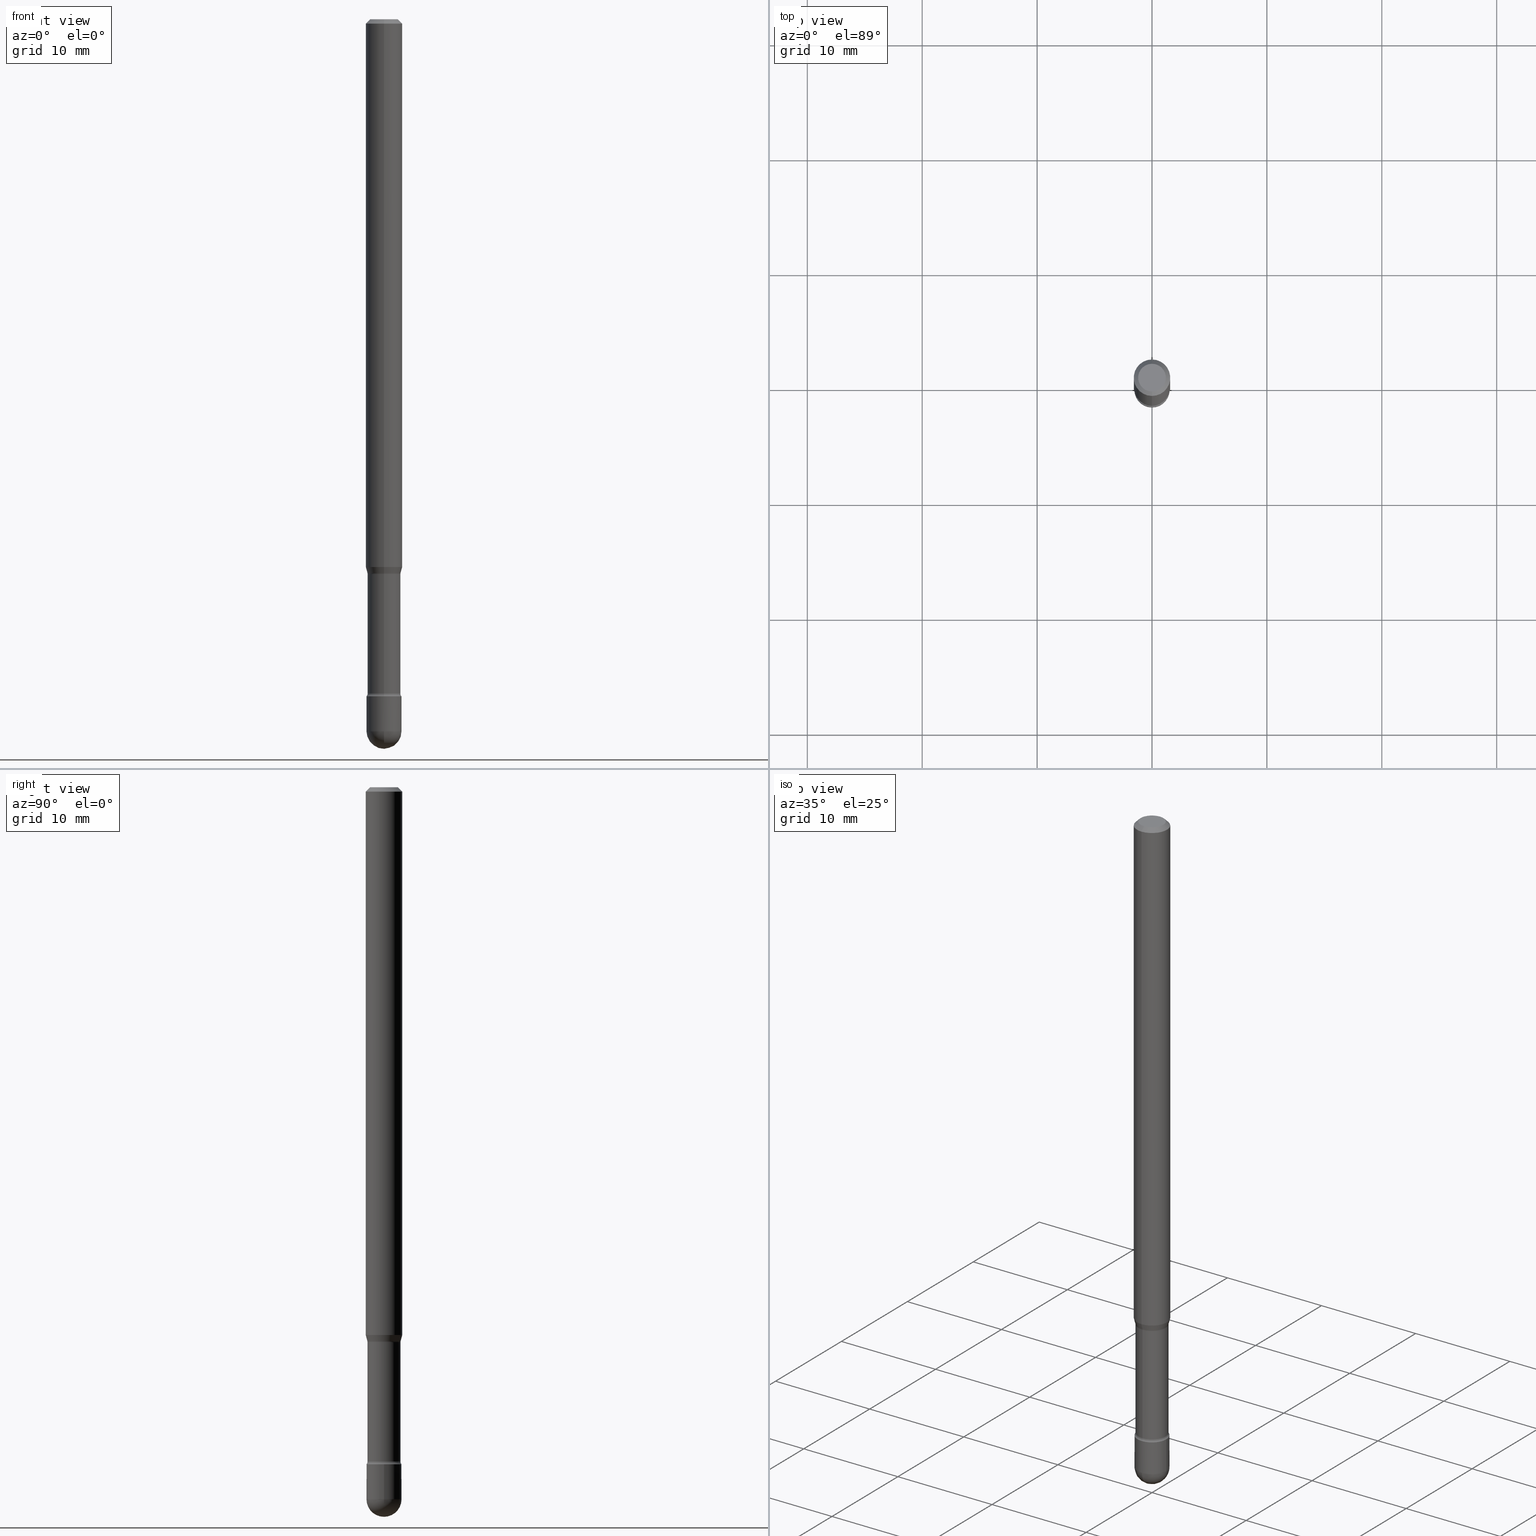
[diagram: canonical four-view strip — front | top / right | iso, engineering-drawing reading convention]
A machine part, canonical four-view strip (front | top / right | iso — engineering-drawing reading convention). The complete STEP part file that produces these views, byte-faithful:
ISO-10303-21;
HEADER;
FILE_DESCRIPTION (( 'STEP AP203' ),
    '1' );
FILE_NAME ('03858.STEP',
    '2024-04-09T20:47:46',
    ( '' ),
    ( '' ),
    'SwSTEP 2.0',
    'SolidWorks 2023',
    '' );
FILE_SCHEMA (( 'CONFIG_CONTROL_DESIGN' ));
ENDSEC;

DATA;
#1 = DIRECTION ( 'NONE',  ( -6.982962677686265922E-15, -1.000000000000000000, 3.491413096180566142E-15 ) ) ;
#2 = DIRECTION ( 'NONE',  ( -6.982962677686265922E-15, -1.000000000000000000, 4.370956789862821150E-15 ) ) ;
#3 = ORIENTED_EDGE ( 'NONE', *, *, #417, .F. ) ;
#4 = APPLICATION_CONTEXT ( 'configuration controlled 3d designs of mechanical parts and assemblies' ) ;
#5 = DIRECTION ( 'NONE',  ( -2.445516459781718316E-29, 3.491413096180566537E-15, 1.000000000000000000 ) ) ;
#6 = CARTESIAN_POINT ( 'NONE',  ( -4.985835351867527244E-16, -0.07140000000000662483, -1.901974787463810879 ) ) ;
#7 = CIRCLE ( 'NONE', #165, 0.05999999999999999084 ) ;
#8 = CIRCLE ( 'NONE', #244, 0.05999999999999994921 ) ;
#9 = DIRECTION ( 'NONE',  ( 1.000000000000000000, 0.000000000000000000, 0.000000000000000000 ) ) ;
#10 = DIRECTION ( 'NONE',  ( -1.000000000000000000, 7.105427357601001070E-15, -4.926315508542082329E-29 ) ) ;
#11 = EDGE_CURVE ( 'NONE', #142, #329, #369, .T. ) ;
#12 = ORIENTED_EDGE ( 'NONE', *, *, #36, .F. ) ;
#13 = ORIENTED_EDGE ( 'NONE', *, *, #236, .F. ) ;
#14 = DATE_AND_TIME ( #97, #168 ) ;
#15 = ADVANCED_FACE ( 'NONE', ( #547 ), #325, .T. ) ;
#16 = ORIENTED_EDGE ( 'NONE', *, *, #477, .T. ) ;
#17 = EDGE_LOOP ( 'NONE', ( #324, #542, #247, #292, #144 ) ) ;
#18 = CARTESIAN_POINT ( 'NONE',  ( 4.641816455309037282E-29, -6.627025018502220601E-15, -1.898092501787273401 ) ) ;
#19 = ORIENTED_EDGE ( 'NONE', *, *, #327, .F. ) ;
#20 = DIRECTION ( 'NONE',  ( -2.445516459781718597E-29, 3.491413096180566537E-15, 1.000000000000000000 ) ) ;
#21 = CIRCLE ( 'NONE', #428, 0.06250000000000000000 ) ;
#22 = AXIS2_PLACEMENT_3D ( 'NONE', #523, #260, #516 ) ;
#23 = VERTEX_POINT ( 'NONE', #457 ) ;
#24 = CC_DESIGN_SECURITY_CLASSIFICATION ( #204, ( #213 ) ) ;
#25 = EDGE_CURVE ( 'NONE', #242, #316, #497, .T. ) ;
#26 = CARTESIAN_POINT ( 'NONE',  ( -1.169113584055446105E-44, 1.669184350826100908E-30, 4.780733988912460139E-16 ) ) ;
#27 = DIRECTION ( 'NONE',  ( 7.105427357600998703E-15, 1.000000000000000000, 0.000000000000000000 ) ) ;
#28 = ADVANCED_FACE ( 'NONE', ( #334 ), #509, .T. ) ;
#29 = CARTESIAN_POINT ( 'NONE',  ( -4.364351673553916201E-16, -0.06250000000000000000, 6.962867174025315211E-16 ) ) ;
#30 = DIRECTION ( 'NONE',  ( -2.445516459781718316E-29, 3.491413096180566537E-15, 1.000000000000000000 ) ) ;
#31 = VECTOR ( 'NONE', #471, 39.37007874015748143 ) ;
#32 = LOCAL_TIME ( 16, 47, 46.00000000000000000, #279 ) ;
#33 = CARTESIAN_POINT ( 'NONE',  ( 5.673487630349517039E-29, -8.100236706116098414E-15, -2.320000000000000284 ) ) ;
#34 = CARTESIAN_POINT ( 'NONE',  ( 4.263256414561168444E-16, 0.05999999999999190703, -2.320000000000000284 ) ) ;
#35 = DIRECTION ( 'NONE',  ( -6.982962677686265922E-15, -1.000000000000000000, 3.491413096180566142E-15 ) ) ;
#36 = EDGE_CURVE ( 'NONE', #469, #494, #7, .T. ) ;
#37 = FACE_OUTER_BOUND ( 'NONE', #177, .T. ) ;
#38 = CC_DESIGN_PERSON_AND_ORGANIZATION_ASSIGNMENT ( #162, #302, ( #204 ) ) ;
#39 = CARTESIAN_POINT ( 'NONE',  ( 2.023899380522805795E-45, -2.888827639509961427E-31, -8.275027359801793586E-17 ) ) ;
#40 = CARTESIAN_POINT ( 'NONE',  ( 5.649647131350973229E-29, -8.066198791933100712E-15, -2.310251153914436806 ) ) ;
#41 = AXIS2_PLACEMENT_3D ( 'NONE', #6, #132, #84 ) ;
#42 = FACE_OUTER_BOUND ( 'NONE', #254, .T. ) ;
#43 = CARTESIAN_POINT ( 'NONE',  ( 3.840629472727447874E-16, 0.04749999999999999362, -2.485923956665948360E-16 ) ) ;
#44 = CARTESIAN_POINT ( 'NONE',  ( 4.440892098501086659E-16, 0.06249999999999993755, -0.01500000000000030129 ) ) ;
#45 = APPLICATION_PROTOCOL_DEFINITION ( 'international standard', 'config_control_design', 1994, #224 ) ;
#46 = EDGE_CURVE ( 'NONE', #418, #407, #376, .T. ) ;
#47 = DIRECTION ( 'NONE',  ( -2.445516459781718316E-29, 3.491413096180566537E-15, 1.000000000000000000 ) ) ;
#48 = CONICAL_SURFACE ( 'NONE', #379, 0.05691111260566400487, 0.2617993877991499074 ) ;
#49 = CIRCLE ( 'NONE', #374, 0.05999999999999999778 ) ;
#50 = DATE_AND_TIME ( #135, #32 ) ;
#51 = LOCAL_TIME ( 16, 47, 46.00000000000000000, #442 ) ;
#52 = EDGE_CURVE ( 'NONE', #56, #316, #551, .T. ) ;
#53 = ORIENTED_EDGE ( 'NONE', *, *, #238, .F. ) ;
#54 = ORIENTED_EDGE ( 'NONE', *, *, #236, .T. ) ;
#55 = CARTESIAN_POINT ( 'NONE',  ( 4.135358722124349706E-16, 0.05639999999999196351, -2.310251153914437250 ) ) ;
#56 = VERTEX_POINT ( 'NONE', #282 ) ;
#57 = DIRECTION ( 'NONE',  ( -6.982962677686267499E-15, -1.000000000000000000, 0.000000000000000000 ) ) ;
#58 = ADVANCED_FACE ( 'NONE', ( #64 ), #48, .T. ) ;
#59 = AXIS2_PLACEMENT_3D ( 'NONE', #40, #207, #1 ) ;
#60 = ORIENTED_EDGE ( 'NONE', *, *, #433, .F. ) ;
#61 = EDGE_CURVE ( 'NONE', #418, #23, #112, .T. ) ;
#62 = ORIENTED_EDGE ( 'NONE', *, *, #156, .T. ) ;
#63 = ORIENTED_EDGE ( 'NONE', *, *, #496, .F. ) ;
#64 = FACE_OUTER_BOUND ( 'NONE', #239, .T. ) ;
#65 = APPROVAL_PERSON_ORGANIZATION ( #317, #459, #451 ) ;
#66 = DIRECTION ( 'NONE',  ( -6.982962677686265922E-15, -1.000000000000000000, 4.800201346603755735E-15 ) ) ;
#67 = EDGE_LOOP ( 'NONE', ( #278, #498 ) ) ;
#68 = DIRECTION ( 'NONE',  ( -2.445516459781718597E-29, 3.491413096180566537E-15, 1.000000000000000000 ) ) ;
#69 = APPROVAL ( #486, 'UNSPECIFIED' ) ;
#70 = APPROVAL_DATE_TIME ( #552, #69 ) ;
#71 = DIRECTION ( 'NONE',  ( 1.000000000000000000, -6.982962677686266711E-15, 4.876176775795935793E-29 ) ) ;
#72 = EDGE_CURVE ( 'NONE', #23, #129, #201, .T. ) ;
#73 = DIRECTION ( 'NONE',  ( -2.445468806185136597E-29, 3.491481338843145583E-15, 1.000000000000000000 ) ) ;
#74 = ORIENTED_EDGE ( 'NONE', *, *, #386, .T. ) ;
#75 = FACE_OUTER_BOUND ( 'NONE', #370, .T. ) ;
#76 = TOROIDAL_SURFACE ( 'NONE', #301, 0.07140000000000003288, 0.01500000000000001332 ) ;
#77 = EDGE_CURVE ( 'NONE', #105, #329, #21, .T. ) ;
#78 = DIRECTION ( 'NONE',  ( -6.982962677686265922E-15, -1.000000000000000000, 4.843702116425996063E-15 ) ) ;
#79 = DIRECTION ( 'NONE',  ( -2.445516459781718597E-29, 3.491413096180566537E-15, 1.000000000000000000 ) ) ;
#80 = DATE_TIME_ROLE ( 'classification_date' ) ;
#81 = DIRECTION ( 'NONE',  ( 1.000000000000000000, -6.982962677686269077E-15, 0.000000000000000000 ) ) ;
#82 = DIRECTION ( 'NONE',  ( -2.445468806185136597E-29, 3.491481338843145583E-15, 1.000000000000000000 ) ) ;
#83 = APPROVAL_ROLE ( '' ) ;
#84 = DIRECTION ( 'NONE',  ( -6.982962677686262766E-15, -1.000000000000000000, 0.000000000000000000 ) ) ;
#85 = AXIS2_PLACEMENT_3D ( 'NONE', #125, #123, #71 ) ;
#86 = AXIS2_PLACEMENT_3D ( 'NONE', #39, #124, #485 ) ;
#87 = DATE_AND_TIME ( #365, #267 ) ;
#88 = CARTESIAN_POINT ( 'NONE',  ( -1.169113584055446105E-44, 1.669184350826100908E-30, 4.780733988912460139E-16 ) ) ;
#89 = CC_DESIGN_PERSON_AND_ORGANIZATION_ASSIGNMENT ( #143, #256, ( #213 ) ) ;
#90 = CARTESIAN_POINT ( 'NONE',  ( 4.364351673553919652E-16, 0.06249999999999995143, -0.01500000000000030129 ) ) ;
#91 = DIRECTION ( 'NONE',  ( 6.982962677686265922E-15, 1.000000000000000000, -4.553079989440442247E-15 ) ) ;
#92 = ORIENTED_EDGE ( 'NONE', *, *, #61, .T. ) ;
#93 = ADVANCED_FACE ( 'NONE', ( #287 ), #422, .T. ) ;
#94 = ORIENTED_EDGE ( 'NONE', *, *, #477, .F. ) ;
#95 = ORIENTED_EDGE ( 'NONE', *, *, #152, .F. ) ;
#96 = AXIS2_PLACEMENT_3D ( 'NONE', #558, #384, #78 ) ;
#97 = CALENDAR_DATE ( 2024, 9, 4 ) ;
#98 = LOCAL_TIME ( 16, 47, 46.00000000000000000, #479 ) ;
#99 = CC_DESIGN_PERSON_AND_ORGANIZATION_ASSIGNMENT ( #323, #446, ( #503 ) ) ;
#100 = ORIENTED_EDGE ( 'NONE', *, *, #61, .F. ) ;
#101 =( LENGTH_UNIT ( ) NAMED_UNIT ( * ) SI_UNIT ( $, .METRE. ) );
#102 = ADVANCED_FACE ( 'NONE', ( #75 ), #465, .F. ) ;
#103 = ORIENTED_EDGE ( 'NONE', *, *, #536, .T. ) ;
#104 = MANIFOLD_SOLID_BREP ( 'Body-Move/Copy2[2]', #243 ) ;
#105 = VERTEX_POINT ( 'NONE', #473 ) ;
#106 = ADVANCED_FACE ( 'NONE', ( #163 ), #383, .T. ) ;
#107 = CIRCLE ( 'NONE', #41, 0.01499999999999999424 ) ;
#108 = DIRECTION ( 'NONE',  ( -2.445468806185136597E-29, 3.491481338843145583E-15, 1.000000000000000000 ) ) ;
#109 = ADVANCED_FACE ( 'NONE', ( #378 ), #147, .T. ) ;
#110 = CARTESIAN_POINT ( 'NONE',  ( -1.169113584055446105E-44, 1.669184350826100908E-30, 4.780733988912460139E-16 ) ) ;
#111 = CARTESIAN_POINT ( 'NONE',  ( 5.673598186693586539E-29, -8.100078383138915375E-15, -2.320000000000000284 ) ) ;
#112 = CIRCLE ( 'NONE', #176, 0.01500000000000001853 ) ;
#113 = CARTESIAN_POINT ( 'NONE',  ( -3.938390950215054539E-16, -0.05640000000000001262, 6.749890975158300854E-16 ) ) ;
#114 = ORIENTED_EDGE ( 'NONE', *, *, #386, .F. ) ;
#115 = DIRECTION ( 'NONE',  ( -2.445468806185136597E-29, 3.491481338843145583E-15, 1.000000000000000000 ) ) ;
#116 = CARTESIAN_POINT ( 'NONE',  ( -3.938390950214588618E-16, -0.05640000000000664621, -1.901974787463810879 ) ) ;
#117 = CARTESIAN_POINT ( 'NONE',  ( -3.773273898774340269E-16, -0.04749999999999999362, 8.309184847055897661E-17 ) ) ;
#118 = FACE_OUTER_BOUND ( 'NONE', #222, .T. ) ;
#119 = CARTESIAN_POINT ( 'NONE',  ( 5.966943887091733341E-29, -8.519214466777275048E-15, -2.440000000000000391 ) ) ;
#120 = VECTOR ( 'NONE', #68, 39.37007874015748143 ) ;
#121 = ADVANCED_FACE ( 'NONE', ( #37 ), #553, .T. ) ;
#122 = CARTESIAN_POINT ( 'NONE',  ( 3.668274689672597391E-31, -5.237119644270878574E-17, -0.01500000000000008271 ) ) ;
#123 = DIRECTION ( 'NONE',  ( -2.445468806185136597E-29, 3.491481338843145583E-15, 1.000000000000000000 ) ) ;
#124 = DIRECTION ( 'NONE',  ( -2.445516459781718316E-29, 3.491413096180566537E-15, 1.000000000000000000 ) ) ;
#125 = CARTESIAN_POINT ( 'NONE',  ( 0.000000000000000000, 0.000000000000000000, 0.000000000000000000 ) ) ;
#126 = DIRECTION ( 'NONE',  ( -2.445516459781718316E-29, 3.491413096180566537E-15, 1.000000000000000000 ) ) ;
#127 = DIRECTION ( 'NONE',  ( -2.445516459781718316E-29, 3.491413096180566537E-15, 1.000000000000000000 ) ) ;
#128 = PRODUCT_RELATED_PRODUCT_CATEGORY ( 'detail', '', ( #503 ) ) ;
#129 = VERTEX_POINT ( 'NONE', #34 ) ;
#130 = AXIS2_PLACEMENT_3D ( 'NONE', #159, #432, #208 ) ;
#131 =( NAMED_UNIT ( * ) PLANE_ANGLE_UNIT ( ) SI_UNIT ( $, .RADIAN. ) );
#132 = DIRECTION ( 'NONE',  ( -1.000000000000000000, 6.982962677686265922E-15, -4.883557194083112901E-29 ) ) ;
#133 = EDGE_LOOP ( 'NONE', ( #326, #294 ) ) ;
#134 = EDGE_CURVE ( 'NONE', #416, #407, #439, .T. ) ;
#135 = CALENDAR_DATE ( 2024, 9, 4 ) ;
#136 = FACE_OUTER_BOUND ( 'NONE', #355, .T. ) ;
#137 = EDGE_LOOP ( 'NONE', ( #289, #531, #340, #359 ) ) ;
#138 = APPLICATION_PROTOCOL_DEFINITION ( 'international standard', 'config_control_design', 1994, #4 ) ;
#139 = PRODUCT_DEFINITION ( 'UNKNOWN', '', #213, #467 ) ;
#140 = AXIS2_PLACEMENT_3D ( 'NONE', #342, #158, #81 ) ;
#141 = DIRECTION ( 'NONE',  ( 2.445516459781717756E-29, -3.491413096180566537E-15, -1.000000000000000000 ) ) ;
#142 = VERTEX_POINT ( 'NONE', #521 ) ;
#143 = PERSON_AND_ORGANIZATION ( #351, #549 ) ;
#144 = ORIENTED_EDGE ( 'NONE', *, *, #152, .T. ) ;
#145 = DIRECTION ( 'NONE',  ( -2.445516459781718316E-29, 3.491413096180566537E-15, 1.000000000000000000 ) ) ;
#146 = EDGE_CURVE ( 'NONE', #230, #320, #401, .T. ) ;
#147 = CONICAL_SURFACE ( 'NONE', #499, 0.06250000000000000000, 0.7853981633974483900 ) ;
#148 = AXIS2_PLACEMENT_3D ( 'NONE', #172, #141, #277 ) ;
#149 = DIRECTION ( 'NONE',  ( -6.982962677686265922E-15, -1.000000000000000000, 3.491413096180567326E-15 ) ) ;
#150 = PERSON_AND_ORGANIZATION ( #351, #549 ) ;
#151 = EDGE_CURVE ( 'NONE', #56, #469, #335, .T. ) ;
#152 = EDGE_CURVE ( 'NONE', #494, #320, #328, .T. ) ;
#153 = CARTESIAN_POINT ( 'NONE',  ( -0.05999999999999999084, 4.263256414560600464E-16, -2.951361054152942712E-30 ) ) ;
#154 = EDGE_CURVE ( 'NONE', #535, #416, #337, .T. ) ;
#155 = CARTESIAN_POINT ( 'NONE',  ( 4.440892098500625669E-16, 0.06250000000000000000, 2.598600803799606547E-16 ) ) ;
#156 = EDGE_CURVE ( 'NONE', #494, #242, #480, .T. ) ;
#157 = AXIS2_PLACEMENT_3D ( 'NONE', #534, #47, #530 ) ;
#158 = DIRECTION ( 'NONE',  ( -2.445468806185136597E-29, 3.491481338843145583E-15, 1.000000000000000000 ) ) ;
#159 = CARTESIAN_POINT ( 'NONE',  ( 3.668274689672597391E-31, -5.237119644270878574E-17, -0.01500000000000008271 ) ) ;
#160 = DIRECTION ( 'NONE',  ( -2.445516459781718316E-29, 3.491413096180566537E-15, 1.000000000000000000 ) ) ;
#161 = DIRECTION ( 'NONE',  ( 1.000000000000000000, -6.982962677686265922E-15, 4.876176775795935793E-29 ) ) ;
#162 = PERSON_AND_ORGANIZATION ( #351, #549 ) ;
#163 = FACE_OUTER_BOUND ( 'NONE', #17, .T. ) ;
#164 = CARTESIAN_POINT ( 'NONE',  ( -4.364351673553456197E-16, -0.06250000000000653644, -1.877234490073830031 ) ) ;
#165 = AXIS2_PLACEMENT_3D ( 'NONE', #290, #235, #462 ) ;
#166 = FACE_OUTER_BOUND ( 'NONE', #133, .T. ) ;
#167 = AXIS2_PLACEMENT_3D ( 'NONE', #26, #200, #171 ) ;
#168 = LOCAL_TIME ( 16, 47, 46.00000000000000000, #410 ) ;
#169 = DIRECTION ( 'NONE',  ( -2.445516459781718316E-29, 3.491413096180566537E-15, 1.000000000000000000 ) ) ;
#170 = PERSON_AND_ORGANIZATION ( #351, #549 ) ;
#171 = DIRECTION ( 'NONE',  ( -6.982962677686265133E-15, -1.000000000000000000, 3.491413096180567326E-15 ) ) ;
#172 = CARTESIAN_POINT ( 'NONE',  ( 3.316907271900976096E-16, 0.04749999999999999362, 3.181944057803721901E-17 ) ) ;
#173 = CARTESIAN_POINT ( 'NONE',  ( 4.651220012893355916E-29, -6.640709477380055554E-15, -1.901974787463811323 ) ) ;
#174 = ORIENTED_EDGE ( 'NONE', *, *, #343, .F. ) ;
#175 = DIRECTION ( 'NONE',  ( -6.982962677686265133E-15, -1.000000000000000000, 4.843702116425998430E-15 ) ) ;
#176 = AXIS2_PLACEMENT_3D ( 'NONE', #246, #293, #57 ) ;
#177 = EDGE_LOOP ( 'NONE', ( #270, #377, #533, #3 ) ) ;
#178 = CIRCLE ( 'NONE', #546, 0.05691111260566400487 ) ;
#179 = CONICAL_SURFACE ( 'NONE', #529, 0.06250000000000000000, 0.7853981633974483900 ) ;
#180 = APPROVAL_DATE_TIME ( #87, #263 ) ;
#181 = DIRECTION ( 'NONE',  ( -7.105427357601001070E-15, -1.000000000000000000, 0.000000000000000000 ) ) ;
#182 = CC_DESIGN_DATE_AND_TIME_ASSIGNMENT ( #483, #80, ( #204 ) ) ;
#183 = PERSON_AND_ORGANIZATION ( #351, #549 ) ;
#184 = ORIENTED_EDGE ( 'NONE', *, *, #424, .T. ) ;
#185 = COORDINATED_UNIVERSAL_TIME_OFFSET ( 5, 0, .BEHIND. ) ;
#186 = ORIENTED_EDGE ( 'NONE', *, *, #344, .T. ) ;
#187 = TOROIDAL_SURFACE ( 'NONE', #512, 0.07139999999999999125, 0.01499999999999998730 ) ;
#188 = AXIS2_PLACEMENT_3D ( 'NONE', #489, #126, #202 ) ;
#189 = DIRECTION ( 'NONE',  ( 0.000000000000000000, 0.000000000000000000, 1.000000000000000000 ) ) ;
#190 = DIRECTION ( 'NONE',  ( -6.982962677686265133E-15, -1.000000000000000000, 3.491413096180567326E-15 ) ) ;
#191 = ADVANCED_FACE ( 'NONE', ( #166 ), #348, .F. ) ;
#192 = ORIENTED_EDGE ( 'NONE', *, *, #434, .T. ) ;
#193 = EDGE_LOOP ( 'NONE', ( #281, #511, #194, #556 ) ) ;
#194 = ORIENTED_EDGE ( 'NONE', *, *, #434, .F. ) ;
#195 = AXIS2_PLACEMENT_3D ( 'NONE', #468, #160, #339 ) ;
#196 = AXIS2_PLACEMENT_3D ( 'NONE', #210, #169, #2 ) ;
#197 = DIRECTION ( 'NONE',  ( -2.445516459781718316E-29, 3.491413096180566537E-15, 1.000000000000000000 ) ) ;
#198 = EDGE_CURVE ( 'NONE', #129, #23, #412, .T. ) ;
#199 = ORIENTED_EDGE ( 'NONE', *, *, #146, .T. ) ;
#200 = DIRECTION ( 'NONE',  ( -2.445516459781718316E-29, 3.491413096180566537E-15, 1.000000000000000000 ) ) ;
#201 = CIRCLE ( 'NONE', #275, 0.05999999999999999778 ) ;
#202 = DIRECTION ( 'NONE',  ( -6.982962677686265922E-15, -1.000000000000000000, 4.800201346603755735E-15 ) ) ;
#203 = CIRCLE ( 'NONE', #391, 0.01500000000000001853 ) ;
#204 = SECURITY_CLASSIFICATION ( '', '', #385 ) ;
#205 = CARTESIAN_POINT ( 'NONE',  ( 6.116237514330379097E-29, -8.725029406710421437E-15, -2.500000000000000000 ) ) ;
#206 = DIRECTION ( 'NONE',  ( -2.445516459781718316E-29, 3.491413096180566537E-15, 1.000000000000000000 ) ) ;
#207 = DIRECTION ( 'NONE',  ( -2.445516459781718316E-29, 3.491413096180566537E-15, 1.000000000000000000 ) ) ;
#208 = DIRECTION ( 'NONE',  ( -6.982962677686265922E-15, -1.000000000000000000, 3.483106191921935554E-15 ) ) ;
#209 = DIRECTION ( 'NONE',  ( -6.982962677686265133E-15, -1.000000000000000000, 4.843702116425998430E-15 ) ) ;
#210 = CARTESIAN_POINT ( 'NONE',  ( 4.590807844345492513E-29, -6.554201083245618792E-15, -1.877234490073830253 ) ) ;
#211 = AXIS2_PLACEMENT_3D ( 'NONE', #119, #115, #304 ) ;
#212 = DIRECTION ( 'NONE',  ( -6.982962677686265922E-15, -1.000000000000000000, 4.553079989440439092E-15 ) ) ;
#213 = PRODUCT_DEFINITION_FORMATION_WITH_SPECIFIED_SOURCE ( 'ANY', '', #503, .NOT_KNOWN. ) ;
#214 = PLANE ( 'NONE',  #148 ) ;
#215 = CALENDAR_DATE ( 2024, 9, 4 ) ;
#216 = DIRECTION ( 'NONE',  ( -1.807323732225327773E-15, -0.2588190451025178529, 0.9659258262890690894 ) ) ;
#217 = ORIENTED_EDGE ( 'NONE', *, *, #496, .T. ) ;
#218 =( NAMED_UNIT ( * ) SI_UNIT ( $, .STERADIAN. ) SOLID_ANGLE_UNIT ( ) );
#219 = FACE_OUTER_BOUND ( 'NONE', #504, .T. ) ;
#220 = ADVANCED_FACE ( 'NONE', ( #393 ), #350, .T. ) ;
#221 = FACE_OUTER_BOUND ( 'NONE', #541, .T. ) ;
#222 = EDGE_LOOP ( 'NONE', ( #19, #184, #411, #408 ) ) ;
#223 = AXIS2_PLACEMENT_3D ( 'NONE', #448, #189, #9 ) ;
#224 = APPLICATION_CONTEXT ( 'configuration controlled 3d designs of mechanical parts and assemblies' ) ;
#225 = ORIENTED_EDGE ( 'NONE', *, *, #72, .T. ) ;
#226 = DIRECTION ( 'NONE',  ( -6.982962677686265922E-15, -1.000000000000000000, 4.800201346603755735E-15 ) ) ;
#227 = SHAPE_DEFINITION_REPRESENTATION ( #414, #284 ) ;
#228 = ORIENTED_EDGE ( 'NONE', *, *, #327, .T. ) ;
#229 = ORIENTED_EDGE ( 'NONE', *, *, #403, .F. ) ;
#230 = VERTEX_POINT ( 'NONE', #205 ) ;
#231 = CARTESIAN_POINT ( 'NONE',  ( 5.673487630349517039E-29, -8.100236706116098414E-15, -2.320000000000000284 ) ) ;
#232 = VECTOR ( 'NONE', #20, 39.37007874015748143 ) ;
#233 = VECTOR ( 'NONE', #216, 39.37007874015748143 ) ;
#234 = CC_DESIGN_DATE_AND_TIME_ASSIGNMENT ( #50, #318, ( #139 ) ) ;
#235 = DIRECTION ( 'NONE',  ( -2.445468806185136597E-29, 3.491481338843145583E-15, 1.000000000000000000 ) ) ;
#236 = EDGE_CURVE ( 'NONE', #142, #436, #357, .T. ) ;
#237 = VERTEX_POINT ( 'NONE', #117 ) ;
#238 = EDGE_CURVE ( 'NONE', #535, #129, #203, .T. ) ;
#239 = EDGE_LOOP ( 'NONE', ( #229, #186, #426, #13 ) ) ;
#240 = EDGE_LOOP ( 'NONE', ( #466, #54, #16, #114 ) ) ;
#241 = EDGE_CURVE ( 'NONE', #364, #407, #107, .T. ) ;
#242 = VERTEX_POINT ( 'NONE', #395 ) ;
#243 = CLOSED_SHELL ( 'NONE', ( #296, #93, #405, #463, #332, #505, #58, #15, #109, #525, #191, #102, #28, #285 ) ) ;
#244 = AXIS2_PLACEMENT_3D ( 'NONE', #354, #10, #181 ) ;
#245 = AXIS2_PLACEMENT_3D ( 'NONE', #310, #361, #443 ) ;
#246 = CARTESIAN_POINT ( 'NONE',  ( -4.985835351867431595E-16, -0.07140000000000810976, -2.310251153914436806 ) ) ;
#247 = ORIENTED_EDGE ( 'NONE', *, *, #25, .F. ) ;
#248 = DIRECTION ( 'NONE',  ( 1.000000000000000000, -7.105427357601001070E-15, 4.926314672810499300E-29 ) ) ;
#249 = ADVANCED_FACE ( 'NONE', ( #315 ), #266, .T. ) ;
#250 = DIRECTION ( 'NONE',  ( -6.982962677686265922E-15, -1.000000000000000000, 4.800201346603755735E-15 ) ) ;
#251 = ORIENTED_EDGE ( 'NONE', *, *, #134, .T. ) ;
#252 = CLOSED_SHELL ( 'NONE', ( #106, #121, #382, #249, #220 ) ) ;
#253 = CARTESIAN_POINT ( 'NONE',  ( 4.641816455309037282E-29, -6.627025018502220601E-15, -1.898092501787273401 ) ) ;
#254 = EDGE_LOOP ( 'NONE', ( #217, #228 ) ) ;
#255 = CIRCLE ( 'NONE', #283, 0.05999999999999999084 ) ;
#256 = PERSON_AND_ORGANIZATION_ROLE ( 'design_supplier' ) ;
#257 =( GEOMETRIC_REPRESENTATION_CONTEXT ( 3 ) GLOBAL_UNCERTAINTY_ASSIGNED_CONTEXT ( ( #353 ) ) GLOBAL_UNIT_ASSIGNED_CONTEXT ( ( #528, #131, #218 ) ) REPRESENTATION_CONTEXT ( 'NONE', 'WORKASPACE' ) );
#258 = CARTESIAN_POINT ( 'NONE',  ( 5.966943887091733341E-29, -8.519214466777275048E-15, -2.440000000000000391 ) ) ;
#259 = DIRECTION ( 'NONE',  ( -2.438088387897960049E-29, 3.491481338843145188E-15, 1.000000000000000000 ) ) ;
#260 = DIRECTION ( 'NONE',  ( -2.445468806185136597E-29, 3.491481338843145583E-15, 1.000000000000000000 ) ) ;
#261 = DIRECTION ( 'NONE',  ( -6.982962677686265922E-15, -1.000000000000000000, 3.491413096180567326E-15 ) ) ;
#262 = CARTESIAN_POINT ( 'NONE',  ( 4.189777606612326922E-16, 0.05999999999999190009, -2.320000000000000284 ) ) ;
#263 = APPROVAL ( #532, 'UNSPECIFIED' ) ;
#264 = FACE_OUTER_BOUND ( 'NONE', #193, .T. ) ;
#265 = CIRCLE ( 'NONE', #245, 0.05640000000000002650 ) ;
#266 = SPHERICAL_SURFACE ( 'NONE', #420, 0.05999999999999994921 ) ;
#267 = LOCAL_TIME ( 16, 47, 46.00000000000000000, #185 ) ;
#268 = CARTESIAN_POINT ( 'NONE',  ( 4.651310648832586017E-29, -6.640579681556400063E-15, -1.901974787463811323 ) ) ;
#269 = DIRECTION ( 'NONE',  ( -1.000000000000000000, 6.982962677686265922E-15, -4.883557194083113462E-29 ) ) ;
#270 = ORIENTED_EDGE ( 'NONE', *, *, #146, .F. ) ;
#271 = EDGE_CURVE ( 'NONE', #535, #418, #265, .T. ) ;
#272 = MECHANICAL_CONTEXT ( 'NONE', #4, 'mechanical' ) ;
#273 = DIRECTION ( 'NONE',  ( -6.982962677686265922E-15, -1.000000000000000000, 3.491413096180566142E-15 ) ) ;
#274 = VERTEX_POINT ( 'NONE', #43 ) ;
#275 = AXIS2_PLACEMENT_3D ( 'NONE', #111, #291, #545 ) ;
#276 = AXIS2_PLACEMENT_3D ( 'NONE', #262, #557, #295 ) ;
#277 = DIRECTION ( 'NONE',  ( 6.982962677686265922E-15, 1.000000000000000000, -3.491413096180566537E-15 ) ) ;
#278 = ORIENTED_EDGE ( 'NONE', *, *, #25, .T. ) ;
#279 = COORDINATED_UNIVERSAL_TIME_OFFSET ( 5, 0, .BEHIND. ) ;
#280 = EDGE_LOOP ( 'NONE', ( #314, #409, #460, #62, #60 ) ) ;
#281 = ORIENTED_EDGE ( 'NONE', *, *, #543, .T. ) ;
#282 = CARTESIAN_POINT ( 'NONE',  ( -0.05999999999999999084, -7.883399944990626241E-15, -2.440000000000000391 ) ) ;
#283 = AXIS2_PLACEMENT_3D ( 'NONE', #308, #82, #392 ) ;
#284 = ADVANCED_BREP_SHAPE_REPRESENTATION ( '03858', ( #481, #104, #223 ), #257 ) ;
#285 = ADVANCED_FACE ( 'NONE', ( #221 ), #187, .F. ) ;
#286 = EDGE_LOOP ( 'NONE', ( #454, #63, #103, #74 ) ) ;
#287 = FACE_OUTER_BOUND ( 'NONE', #137, .T. ) ;
#288 = CC_DESIGN_PERSON_AND_ORGANIZATION_ASSIGNMENT ( #183, #539, ( #139 ) ) ;
#289 = ORIENTED_EDGE ( 'NONE', *, *, #343, .T. ) ;
#290 = CARTESIAN_POINT ( 'NONE',  ( 5.966943887091733341E-29, -8.519214466777275048E-15, -2.440000000000000391 ) ) ;
#291 = DIRECTION ( 'NONE',  ( -2.445516459781718316E-29, 3.491413096180566537E-15, 1.000000000000000000 ) ) ;
#292 = ORIENTED_EDGE ( 'NONE', *, *, #156, .F. ) ;
#293 = DIRECTION ( 'NONE',  ( -1.000000000000000000, 6.982962677686265922E-15, -4.883557194083112901E-29 ) ) ;
#294 = ORIENTED_EDGE ( 'NONE', *, *, #198, .F. ) ;
#295 = DIRECTION ( 'NONE',  ( -6.982962677686265922E-15, -1.000000000000000000, 3.491413096180566537E-15 ) ) ;
#296 = ADVANCED_FACE ( 'NONE', ( #136 ), #488, .F. ) ;
#297 = FACE_OUTER_BOUND ( 'NONE', #371, .T. ) ;
#298 = ORIENTED_EDGE ( 'NONE', *, *, #543, .F. ) ;
#299 = CARTESIAN_POINT ( 'NONE',  ( 5.073275133327682685E-16, 0.07139999999999196989, -2.310251153914437250 ) ) ;
#300 = DIRECTION ( 'NONE',  ( 2.445516459781718316E-29, -3.491413096180566537E-15, -1.000000000000000000 ) ) ;
#301 = AXIS2_PLACEMENT_3D ( 'NONE', #381, #515, #35 ) ;
#302 = PERSON_AND_ORGANIZATION_ROLE ( 'classification_officer' ) ;
#303 = CC_DESIGN_APPROVAL ( #459, ( #213 ) ) ;
#304 = DIRECTION ( 'NONE',  ( 1.000000000000000000, -6.982962677686269077E-15, 0.000000000000000000 ) ) ;
#305 = DIRECTION ( 'NONE',  ( 1.839019923739597554E-15, 0.2588190451025245697, 0.9659258262890670910 ) ) ;
#306 = CALENDAR_DATE ( 2024, 9, 4 ) ;
#307 = CARTESIAN_POINT ( 'NONE',  ( 5.673598186693586539E-29, -8.100078383138915375E-15, -2.320000000000000284 ) ) ;
#308 = CARTESIAN_POINT ( 'NONE',  ( 5.966943887091733341E-29, -8.519214466777275048E-15, -2.440000000000000391 ) ) ;
#309 = EDGE_CURVE ( 'NONE', #230, #469, #8, .T. ) ;
#310 = CARTESIAN_POINT ( 'NONE',  ( 5.649757223127462912E-29, -8.066041134243131553E-15, -2.310251153914436806 ) ) ;
#311 = CARTESIAN_POINT ( 'NONE',  ( -3.974081752709057468E-16, -0.05691111260567063151, -1.898092501787272957 ) ) ;
#312 = CIRCLE ( 'NONE', #96, 0.05640000000000002650 ) ;
#313 = CYLINDRICAL_SURFACE ( 'NONE', #346, 0.06250000000000000000 ) ;
#314 = ORIENTED_EDGE ( 'NONE', *, *, #52, .F. ) ;
#315 = FACE_OUTER_BOUND ( 'NONE', #375, .T. ) ;
#316 = VERTEX_POINT ( 'NONE', #487 ) ;
#317 = PERSON_AND_ORGANIZATION ( #351, #549 ) ;
#318 = DATE_TIME_ROLE ( 'creation_date' ) ;
#319 = EDGE_CURVE ( 'NONE', #364, #436, #490, .T. ) ;
#320 = VERTEX_POINT ( 'NONE', #358 ) ;
#321 = VECTOR ( 'NONE', #389, 39.37007874015748143 ) ;
#322 = APPROVAL_PERSON_ORGANIZATION ( #170, #69, #83 ) ;
#323 = PERSON_AND_ORGANIZATION ( #351, #549 ) ;
#324 = ORIENTED_EDGE ( 'NONE', *, *, #417, .T. ) ;
#325 = CYLINDRICAL_SURFACE ( 'NONE', #506, 0.06250000000000000000 ) ;
#326 = ORIENTED_EDGE ( 'NONE', *, *, #72, .F. ) ;
#327 = EDGE_CURVE ( 'NONE', #237, #274, #475, .T. ) ;
#328 = CIRCLE ( 'NONE', #211, 0.05999999999999999084 ) ;
#329 = VERTEX_POINT ( 'NONE', #44 ) ;
#330 = DIRECTION ( 'NONE',  ( 1.000000000000000000, -6.982962677686268288E-15, 0.000000000000000000 ) ) ;
#331 = PERSON_AND_ORGANIZATION_ROLE ( 'creator' ) ;
#332 = ADVANCED_FACE ( 'NONE', ( #219 ), #313, .T. ) ;
#333 = EDGE_LOOP ( 'NONE', ( #419, #372, #367, #449 ) ) ;
#334 = FACE_OUTER_BOUND ( 'NONE', #333, .T. ) ;
#335 = CIRCLE ( 'NONE', #140, 0.05999999999999999084 ) ;
#336 = CIRCLE ( 'NONE', #476, 0.05640000000000000568 ) ;
#337 = LINE ( 'NONE', #470, #120 ) ;
#338 = DIRECTION ( 'NONE',  ( 1.000000000000000000, -6.982962677686268288E-15, 0.000000000000000000 ) ) ;
#339 = DIRECTION ( 'NONE',  ( -6.982962677686265922E-15, -1.000000000000000000, 4.370956789862821150E-15 ) ) ;
#340 = ORIENTED_EDGE ( 'NONE', *, *, #548, .F. ) ;
#341 = CARTESIAN_POINT ( 'NONE',  ( 4.043777764598426034E-16, 0.05691111260565738517, -1.898092501787273623 ) ) ;
#342 = CARTESIAN_POINT ( 'NONE',  ( 5.966943887091733341E-29, -8.519214466777275048E-15, -2.440000000000000391 ) ) ;
#343 = EDGE_CURVE ( 'NONE', #418, #535, #312, .T. ) ;
#344 = EDGE_CURVE ( 'NONE', #445, #364, #178, .T. ) ;
#345 = CARTESIAN_POINT ( 'NONE',  ( 4.242334931549755854E-16, 0.05691111260565738517, -1.898092501787273623 ) ) ;
#346 = AXIS2_PLACEMENT_3D ( 'NONE', #88, #394, #261 ) ;
#347 = APPROVAL_PERSON_ORGANIZATION ( #501, #263, #399 ) ;
#348 = PLANE ( 'NONE',  #276 ) ;
#349 = CARTESIAN_POINT ( 'NONE',  ( -4.263256414560001423E-16, -0.06000000000000849792, -2.439999999999999947 ) ) ;
#350 = CYLINDRICAL_SURFACE ( 'NONE', #85, 0.05999999999999999084 ) ;
#351 = PERSON ( 'UNSPECIFIED', 'UNSPECIFIED', 'UNSPECIFIED', ('UNSPECIFIED'), ('UNSPECIFIED'), ('UNSPECIFIED') ) ;
#352 = DIRECTION ( 'NONE',  ( 1.000000000000000000, -7.105427357601001070E-15, 4.926314672810499300E-29 ) ) ;
#353 = UNCERTAINTY_MEASURE_WITH_UNIT (LENGTH_MEASURE( 1.000000000000000082E-05 ), #528, 'distance_accuracy_value', 'NONE');
#354 = CARTESIAN_POINT ( 'NONE',  ( 5.966943887091733341E-29, -8.519214466777275048E-15, -2.440000000000000391 ) ) ;
#355 = EDGE_LOOP ( 'NONE', ( #413, #502, #251, #537 ) ) ;
#356 = LENGTH_MEASURE_WITH_UNIT ( LENGTH_MEASURE( 0.02539999999999999897 ), #101 );
#357 = CIRCLE ( 'NONE', #195, 0.06250000000000000000 ) ;
#358 = CARTESIAN_POINT ( 'NONE',  ( 4.189777606612354039E-16, 0.05999999999999145600, -2.440000000000000391 ) ) ;
#359 = ORIENTED_EDGE ( 'NONE', *, *, #46, .F. ) ;
#360 = LINE ( 'NONE', #90, #429 ) ;
#361 = DIRECTION ( 'NONE',  ( -2.445516459781718316E-29, 3.491413096180566537E-15, 1.000000000000000000 ) ) ;
#362 = ORIENTED_EDGE ( 'NONE', *, *, #198, .T. ) ;
#363 = CARTESIAN_POINT ( 'NONE',  ( 4.641816455309037282E-29, -6.627025018502220601E-15, -1.898092501787273401 ) ) ;
#364 = VERTEX_POINT ( 'NONE', #311 ) ;
#365 = CALENDAR_DATE ( 2024, 9, 4 ) ;
#366 = AXIS2_PLACEMENT_3D ( 'NONE', #561, #484, #209 ) ;
#367 = ORIENTED_EDGE ( 'NONE', *, *, #46, .T. ) ;
#368 = CC_DESIGN_APPROVAL ( #69, ( #204 ) ) ;
#369 = LINE ( 'NONE', #155, #232 ) ;
#370 = EDGE_LOOP ( 'NONE', ( #53, #174, #92, #225 ) ) ;
#371 = EDGE_LOOP ( 'NONE', ( #517, #453, #362, #100 ) ) ;
#372 = ORIENTED_EDGE ( 'NONE', *, *, #271, .T. ) ;
#373 = APPROVAL_DATE_TIME ( #14, #459 ) ;
#374 = AXIS2_PLACEMENT_3D ( 'NONE', #560, #73, #338 ) ;
#375 = EDGE_LOOP ( 'NONE', ( #447, #199, #95, #12 ) ) ;
#376 = LINE ( 'NONE', #113, #474 ) ;
#377 = ORIENTED_EDGE ( 'NONE', *, *, #309, .T. ) ;
#378 = FACE_OUTER_BOUND ( 'NONE', #286, .T. ) ;
#379 = AXIS2_PLACEMENT_3D ( 'NONE', #18, #510, #66 ) ;
#380 = AXIS2_PLACEMENT_3D ( 'NONE', #33, #259, #161 ) ;
#381 = CARTESIAN_POINT ( 'NONE',  ( 5.649647131350973229E-29, -8.066198791933100712E-15, -2.310251153914436806 ) ) ;
#382 = ADVANCED_FACE ( 'NONE', ( #555 ), #388, .T. ) ;
#383 = CYLINDRICAL_SURFACE ( 'NONE', #22, 0.05999999999999999084 ) ;
#384 = DIRECTION ( 'NONE',  ( -2.445516459781718316E-29, 3.491413096180566537E-15, 1.000000000000000000 ) ) ;
#385 = SECURITY_CLASSIFICATION_LEVEL ( 'unclassified' ) ;
#386 = EDGE_CURVE ( 'NONE', #329, #105, #564, .T. ) ;
#387 = DIRECTION ( 'NONE',  ( 6.982962677686265922E-15, 1.000000000000000000, -3.483106191921935554E-15 ) ) ;
#388 = PLANE ( 'NONE',  #380 ) ;
#389 = DIRECTION ( 'NONE',  ( -2.445468806185136877E-29, 3.491481338843145188E-15, 1.000000000000000000 ) ) ;
#390 = DIMENSIONAL_EXPONENTS ( 1.000000000000000000, 0.000000000000000000, 0.000000000000000000, 0.000000000000000000, 0.000000000000000000, 0.000000000000000000, 0.000000000000000000 ) ;
#391 = AXIS2_PLACEMENT_3D ( 'NONE', #299, #248, #27 ) ;
#392 = DIRECTION ( 'NONE',  ( 1.000000000000000000, -6.982962677686269077E-15, 0.000000000000000000 ) ) ;
#393 = FACE_OUTER_BOUND ( 'NONE', #280, .T. ) ;
#394 = DIRECTION ( 'NONE',  ( -2.445516459781718316E-29, 3.491413096180566537E-15, 1.000000000000000000 ) ) ;
#395 = CARTESIAN_POINT ( 'NONE',  ( 0.05999999999999999778, -8.519214466777275048E-15, -2.320000000000000284 ) ) ;
#396 = DIRECTION ( 'NONE',  ( 4.937700262164548042E-15, 0.7071067811865451302, -0.7071067811865499042 ) ) ;
#397 = EDGE_CURVE ( 'NONE', #445, #416, #456, .T. ) ;
#398 = CARTESIAN_POINT ( 'NONE',  ( -3.974081752709057468E-16, -0.05691111260567063151, -1.898092501787272957 ) ) ;
#399 = APPROVAL_ROLE ( '' ) ;
#400 = AXIS2_PLACEMENT_3D ( 'NONE', #231, #108, #330 ) ;
#401 = CIRCLE ( 'NONE', #563, 0.05999999999999994921 ) ;
#402 = DIRECTION ( 'NONE',  ( -2.445516459781718316E-29, 3.491413096180566537E-15, 1.000000000000000000 ) ) ;
#403 = EDGE_CURVE ( 'NONE', #445, #142, #524, .T. ) ;
#404 = VECTOR ( 'NONE', #79, 39.37007874015748143 ) ;
#405 = ADVANCED_FACE ( 'NONE', ( #297 ), #76, .F. ) ;
#406 = DIRECTION ( 'NONE',  ( -2.445516459781718316E-29, 3.491413096180566537E-15, 1.000000000000000000 ) ) ;
#407 = VERTEX_POINT ( 'NONE', #116 ) ;
#408 = ORIENTED_EDGE ( 'NONE', *, *, #536, .F. ) ;
#409 = ORIENTED_EDGE ( 'NONE', *, *, #151, .T. ) ;
#410 = COORDINATED_UNIVERSAL_TIME_OFFSET ( 5, 0, .BEHIND. ) ;
#411 = ORIENTED_EDGE ( 'NONE', *, *, #77, .T. ) ;
#412 = CIRCLE ( 'NONE', #540, 0.05999999999999999778 ) ;
#413 = ORIENTED_EDGE ( 'NONE', *, *, #344, .F. ) ;
#414 = PRODUCT_DEFINITION_SHAPE ( 'NONE', 'NONE',  #139 ) ;
#415 = DIRECTION ( 'NONE',  ( -2.445516459781718597E-29, 3.491413096180566537E-15, 1.000000000000000000 ) ) ;
#416 = VERTEX_POINT ( 'NONE', #482 ) ;
#417 = EDGE_CURVE ( 'NONE', #320, #56, #255, .T. ) ;
#418 = VERTEX_POINT ( 'NONE', #440 ) ;
#419 = ORIENTED_EDGE ( 'NONE', *, *, #154, .F. ) ;
#420 = AXIS2_PLACEMENT_3D ( 'NONE', #492, #269, #91 ) ;
#421 = CIRCLE ( 'NONE', #86, 0.04749999999999999362 ) ;
#422 = CYLINDRICAL_SURFACE ( 'NONE', #167, 0.05640000000000001262 ) ;
#423 = DIRECTION ( 'NONE',  ( 6.982962677686265922E-15, 1.000000000000000000, -4.553079989440442247E-15 ) ) ;
#424 = EDGE_CURVE ( 'NONE', #237, #105, #566, .T. ) ;
#425 = CARTESIAN_POINT ( 'NONE',  ( -4.287811248607203282E-16, -0.06250000000000005551, -0.01499999999999986587 ) ) ;
#426 = ORIENTED_EDGE ( 'NONE', *, *, #319, .T. ) ;
#427 = CARTESIAN_POINT ( 'NONE',  ( 0.05999999999999999084, -4.189777606611759435E-16, 2.925706065477561055E-30 ) ) ;
#428 = AXIS2_PLACEMENT_3D ( 'NONE', #464, #145, #508 ) ;
#429 = VECTOR ( 'NONE', #396, 39.37007874015748143 ) ;
#430 = DIRECTION ( 'NONE',  ( 7.105427357601001859E-15, 1.000000000000000000, 0.000000000000000000 ) ) ;
#431 = DIRECTION ( 'NONE',  ( -1.000000000000000000, 6.982962677686265922E-15, -4.883557194083113462E-29 ) ) ;
#432 = DIRECTION ( 'NONE',  ( -2.445516459781718316E-29, 3.491413096180566537E-15, 1.000000000000000000 ) ) ;
#433 = EDGE_CURVE ( 'NONE', #316, #242, #49, .T. ) ;
#434 = EDGE_CURVE ( 'NONE', #436, #142, #519, .T. ) ;
#435 = CARTESIAN_POINT ( 'NONE',  ( 3.668274689672597391E-31, -5.237119644270878574E-17, -0.01500000000000008271 ) ) ;
#436 = VERTEX_POINT ( 'NONE', #164 ) ;
#437 = LINE ( 'NONE', #29, #404 ) ;
#438 = DIRECTION ( 'NONE',  ( 6.982962677686265922E-15, 1.000000000000000000, 0.000000000000000000 ) ) ;
#439 = CIRCLE ( 'NONE', #366, 0.05640000000000000568 ) ;
#440 = CARTESIAN_POINT ( 'NONE',  ( -3.938390950214490997E-16, -0.05640000000000809643, -2.310251153914436806 ) ) ;
#441 = CC_DESIGN_APPROVAL ( #263, ( #139 ) ) ;
#442 = COORDINATED_UNIVERSAL_TIME_OFFSET ( 5, 0, .BEHIND. ) ;
#443 = DIRECTION ( 'NONE',  ( -6.982962677686265922E-15, -1.000000000000000000, 4.843702116425996063E-15 ) ) ;
#444 = DIRECTION ( 'NONE',  ( -6.982962677686266711E-15, -1.000000000000000000, 3.491413096180566931E-15 ) ) ;
#445 = VERTEX_POINT ( 'NONE', #345 ) ;
#446 = PERSON_AND_ORGANIZATION_ROLE ( 'design_owner' ) ;
#447 = ORIENTED_EDGE ( 'NONE', *, *, #309, .F. ) ;
#448 = CARTESIAN_POINT ( 'NONE',  ( 0.000000000000000000, 0.000000000000000000, 0.000000000000000000 ) ) ;
#449 = ORIENTED_EDGE ( 'NONE', *, *, #134, .F. ) ;
#450 = AXIS2_PLACEMENT_3D ( 'NONE', #258, #431, #423 ) ;
#451 = APPROVAL_ROLE ( '' ) ;
#452 = ORIENTED_EDGE ( 'NONE', *, *, #241, .T. ) ;
#453 = ORIENTED_EDGE ( 'NONE', *, *, #238, .T. ) ;
#454 = ORIENTED_EDGE ( 'NONE', *, *, #424, .F. ) ;
#455 = VECTOR ( 'NONE', #544, 39.37007874015748143 ) ;
#456 = CIRCLE ( 'NONE', #507, 0.01499999999999999424 ) ;
#457 = CARTESIAN_POINT ( 'NONE',  ( -4.189777606611192934E-16, -0.06000000000000810935, -2.319999999999999840 ) ) ;
#458 = AXIS2_PLACEMENT_3D ( 'NONE', #363, #5, #226 ) ;
#459 = APPROVAL ( #495, 'UNSPECIFIED' ) ;
#460 = ORIENTED_EDGE ( 'NONE', *, *, #36, .T. ) ;
#461 = CARTESIAN_POINT ( 'NONE',  ( -1.169113584055446105E-44, 1.669184350826100908E-30, 4.780733988912460139E-16 ) ) ;
#462 = DIRECTION ( 'NONE',  ( 1.000000000000000000, -6.982962677686269077E-15, 0.000000000000000000 ) ) ;
#463 = ADVANCED_FACE ( 'NONE', ( #118 ), #179, .T. ) ;
#464 = CARTESIAN_POINT ( 'NONE',  ( 3.668274689672597391E-31, -5.237119644270878574E-17, -0.01500000000000008271 ) ) ;
#465 = TOROIDAL_SURFACE ( 'NONE', #59, 0.07140000000000003288, 0.01500000000000001332 ) ;
#466 = ORIENTED_EDGE ( 'NONE', *, *, #11, .F. ) ;
#467 = DESIGN_CONTEXT ( 'detailed design', #224, 'design' ) ;
#468 = CARTESIAN_POINT ( 'NONE',  ( 4.590807844345492513E-29, -6.554201083245618792E-15, -1.877234490073830253 ) ) ;
#469 = VERTEX_POINT ( 'NONE', #349 ) ;
#470 = CARTESIAN_POINT ( 'NONE',  ( 4.007461029686965452E-16, 0.05640000000000001262, 2.811577002666620904E-16 ) ) ;
#471 = DIRECTION ( 'NONE',  ( -4.851104656540964275E-15, -0.7071067811865500152, -0.7071067811865450192 ) ) ;
#472 = ORIENTED_EDGE ( 'NONE', *, *, #77, .F. ) ;
#473 = CARTESIAN_POINT ( 'NONE',  ( -4.364351673553912750E-16, -0.06250000000000005551, -0.01499999999999986587 ) ) ;
#474 = VECTOR ( 'NONE', #415, 39.37007874015748143 ) ;
#475 = CIRCLE ( 'NONE', #554, 0.04749999999999999362 ) ;
#476 = AXIS2_PLACEMENT_3D ( 'NONE', #268, #406, #175 ) ;
#477 = EDGE_CURVE ( 'NONE', #436, #105, #437, .T. ) ;
#478 = DIRECTION ( 'NONE',  ( 6.982962677686265922E-15, 1.000000000000000000, -3.483106191921935554E-15 ) ) ;
#479 = COORDINATED_UNIVERSAL_TIME_OFFSET ( 5, 0, .BEHIND. ) ;
#480 = LINE ( 'NONE', #427, #321 ) ;
#481 = MANIFOLD_SOLID_BREP ( 'Body-Move/Copy2[1]', #252 ) ;
#482 = CARTESIAN_POINT ( 'NONE',  ( 4.007461029687531460E-16, 0.05639999999999337210, -1.901974787463811545 ) ) ;
#483 = DATE_AND_TIME ( #306, #98 ) ;
#484 = DIRECTION ( 'NONE',  ( -2.445516459781718316E-29, 3.491413096180566537E-15, 1.000000000000000000 ) ) ;
#485 = DIRECTION ( 'NONE',  ( -6.982962677686266711E-15, -1.000000000000000000, 3.491413096180566931E-15 ) ) ;
#486 = APPROVAL_STATUS ( 'not_yet_approved' ) ;
#487 = CARTESIAN_POINT ( 'NONE',  ( -0.06000000000000001166, -7.883399944990626241E-15, -2.320000000000000284 ) ) ;
#488 = TOROIDAL_SURFACE ( 'NONE', #157, 0.07139999999999999125, 0.01499999999999998730 ) ;
#489 = CARTESIAN_POINT ( 'NONE',  ( 4.641816455309037282E-29, -6.627025018502220601E-15, -1.898092501787273401 ) ) ;
#490 = LINE ( 'NONE', #398, #233 ) ;
#491 = ORIENTED_EDGE ( 'NONE', *, *, #548, .T. ) ;
#492 = CARTESIAN_POINT ( 'NONE',  ( 5.966943887091733341E-29, -8.519214466777275048E-15, -2.440000000000000391 ) ) ;
#493 = ORIENTED_EDGE ( 'NONE', *, *, #11, .T. ) ;
#494 = VERTEX_POINT ( 'NONE', #522 ) ;
#495 = APPROVAL_STATUS ( 'not_yet_approved' ) ;
#496 = EDGE_CURVE ( 'NONE', #274, #237, #421, .T. ) ;
#497 = CIRCLE ( 'NONE', #400, 0.05999999999999999778 ) ;
#498 = ORIENTED_EDGE ( 'NONE', *, *, #433, .T. ) ;
#499 = AXIS2_PLACEMENT_3D ( 'NONE', #435, #518, #387 ) ;
#500 = CONICAL_SURFACE ( 'NONE', #188, 0.05691111260566400487, 0.2617993877991499074 ) ;
#501 = PERSON_AND_ORGANIZATION ( #351, #549 ) ;
#502 = ORIENTED_EDGE ( 'NONE', *, *, #397, .T. ) ;
#503 = PRODUCT ( '03858', '03858', '', ( #272 ) ) ;
#504 = EDGE_LOOP ( 'NONE', ( #192, #493, #472, #94 ) ) ;
#505 = ADVANCED_FACE ( 'NONE', ( #264 ), #500, .T. ) ;
#506 = AXIS2_PLACEMENT_3D ( 'NONE', #461, #197, #149 ) ;
#507 = AXIS2_PLACEMENT_3D ( 'NONE', #520, #352, #430 ) ;
#508 = DIRECTION ( 'NONE',  ( -6.982962677686265922E-15, -1.000000000000000000, 3.483106191921935554E-15 ) ) ;
#509 = CYLINDRICAL_SURFACE ( 'NONE', #562, 0.05640000000000001262 ) ;
#510 = DIRECTION ( 'NONE',  ( -2.445516459781718316E-29, 3.491413096180566537E-15, 1.000000000000000000 ) ) ;
#511 = ORIENTED_EDGE ( 'NONE', *, *, #403, .T. ) ;
#512 = AXIS2_PLACEMENT_3D ( 'NONE', #173, #402, #273 ) ;
#513 = CIRCLE ( 'NONE', #458, 0.05691111260566400487 ) ;
#514 = DIRECTION ( 'NONE',  ( 1.000000000000000000, -6.982962677686265922E-15, 4.883557194083112340E-29 ) ) ;
#515 = DIRECTION ( 'NONE',  ( -2.445516459781718316E-29, 3.491413096180566537E-15, 1.000000000000000000 ) ) ;
#516 = DIRECTION ( 'NONE',  ( 1.000000000000000000, -6.982962677686266711E-15, 4.876176775795935793E-29 ) ) ;
#517 = ORIENTED_EDGE ( 'NONE', *, *, #271, .F. ) ;
#518 = DIRECTION ( 'NONE',  ( 2.445516459781718316E-29, -3.491413096180566537E-15, -1.000000000000000000 ) ) ;
#519 = CIRCLE ( 'NONE', #196, 0.06250000000000000000 ) ;
#520 = CARTESIAN_POINT ( 'NONE',  ( 5.073275133327579147E-16, 0.07139999999999334379, -1.901974787463811545 ) ) ;
#521 = CARTESIAN_POINT ( 'NONE',  ( 4.440892098501085673E-16, 0.06249999999999347050, -1.877234490073830475 ) ) ;
#522 = CARTESIAN_POINT ( 'NONE',  ( 0.05999999999999999084, -8.728703347107863365E-15, -2.440000000000000391 ) ) ;
#523 = CARTESIAN_POINT ( 'NONE',  ( 0.000000000000000000, 0.000000000000000000, 0.000000000000000000 ) ) ;
#524 = LINE ( 'NONE', #341, #527 ) ;
#525 = ADVANCED_FACE ( 'NONE', ( #42 ), #214, .F. ) ;
#526 = CARTESIAN_POINT ( 'NONE',  ( 2.023899380522805795E-45, -2.888827639509961427E-31, -8.275027359801793586E-17 ) ) ;
#527 = VECTOR ( 'NONE', #305, 39.37007874015748854 ) ;
#528 =( CONVERSION_BASED_UNIT ( 'INCH', #356 ) LENGTH_UNIT ( ) NAMED_UNIT ( #390 ) );
#529 = AXIS2_PLACEMENT_3D ( 'NONE', #122, #300, #478 ) ;
#530 = DIRECTION ( 'NONE',  ( -6.982962677686265922E-15, -1.000000000000000000, 3.491413096180566142E-15 ) ) ;
#531 = ORIENTED_EDGE ( 'NONE', *, *, #154, .T. ) ;
#532 = APPROVAL_STATUS ( 'not_yet_approved' ) ;
#533 = ORIENTED_EDGE ( 'NONE', *, *, #151, .F. ) ;
#534 = CARTESIAN_POINT ( 'NONE',  ( 4.651220012893355916E-29, -6.640709477380055554E-15, -1.901974787463811323 ) ) ;
#535 = VERTEX_POINT ( 'NONE', #55 ) ;
#536 = EDGE_CURVE ( 'NONE', #274, #329, #360, .T. ) ;
#537 = ORIENTED_EDGE ( 'NONE', *, *, #241, .F. ) ;
#538 = ORIENTED_EDGE ( 'NONE', *, *, #397, .F. ) ;
#539 = PERSON_AND_ORGANIZATION_ROLE ( 'creator' ) ;
#540 = AXIS2_PLACEMENT_3D ( 'NONE', #307, #30, #212 ) ;
#541 = EDGE_LOOP ( 'NONE', ( #538, #298, #452, #491 ) ) ;
#542 = ORIENTED_EDGE ( 'NONE', *, *, #52, .T. ) ;
#543 = EDGE_CURVE ( 'NONE', #364, #445, #513, .T. ) ;
#544 = DIRECTION ( 'NONE',  ( -2.445468806185136877E-29, 3.491481338843145188E-15, 1.000000000000000000 ) ) ;
#545 = DIRECTION ( 'NONE',  ( -6.982962677686265922E-15, -1.000000000000000000, 4.553079989440439092E-15 ) ) ;
#546 = AXIS2_PLACEMENT_3D ( 'NONE', #253, #206, #250 ) ;
#547 = FACE_OUTER_BOUND ( 'NONE', #240, .T. ) ;
#548 = EDGE_CURVE ( 'NONE', #407, #416, #336, .T. ) ;
#549 = ORGANIZATION ( 'UNSPECIFIED', 'UNSPECIFIED', '' ) ;
#550 = DIRECTION ( 'NONE',  ( -2.445516459781718316E-29, 3.491413096180566537E-15, 1.000000000000000000 ) ) ;
#551 = LINE ( 'NONE', #153, #455 ) ;
#552 = DATE_AND_TIME ( #215, #51 ) ;
#553 = SPHERICAL_SURFACE ( 'NONE', #450, 0.05999999999999994921 ) ;
#554 = AXIS2_PLACEMENT_3D ( 'NONE', #526, #127, #444 ) ;
#555 = FACE_OUTER_BOUND ( 'NONE', #67, .T. ) ;
#556 = ORIENTED_EDGE ( 'NONE', *, *, #319, .F. ) ;
#557 = DIRECTION ( 'NONE',  ( -2.445516459781717756E-29, 3.491413096180566537E-15, 1.000000000000000000 ) ) ;
#558 = CARTESIAN_POINT ( 'NONE',  ( 5.649757223127462912E-29, -8.066041134243131553E-15, -2.310251153914436806 ) ) ;
#559 = CARTESIAN_POINT ( 'NONE',  ( 5.966943887091733341E-29, -8.519214466777275048E-15, -2.440000000000000391 ) ) ;
#560 = CARTESIAN_POINT ( 'NONE',  ( 5.673487630349517039E-29, -8.100236706116098414E-15, -2.320000000000000284 ) ) ;
#561 = CARTESIAN_POINT ( 'NONE',  ( 4.651310648832586017E-29, -6.640579681556400063E-15, -1.901974787463811323 ) ) ;
#562 = AXIS2_PLACEMENT_3D ( 'NONE', #110, #550, #190 ) ;
#563 = AXIS2_PLACEMENT_3D ( 'NONE', #559, #514, #438 ) ;
#564 = CIRCLE ( 'NONE', #130, 0.06250000000000000000 ) ;
#565 = CC_DESIGN_PERSON_AND_ORGANIZATION_ASSIGNMENT ( #150, #331, ( #213 ) ) ;
#566 = LINE ( 'NONE', #425, #31 ) ;
ENDSEC;
END-ISO-10303-21;
